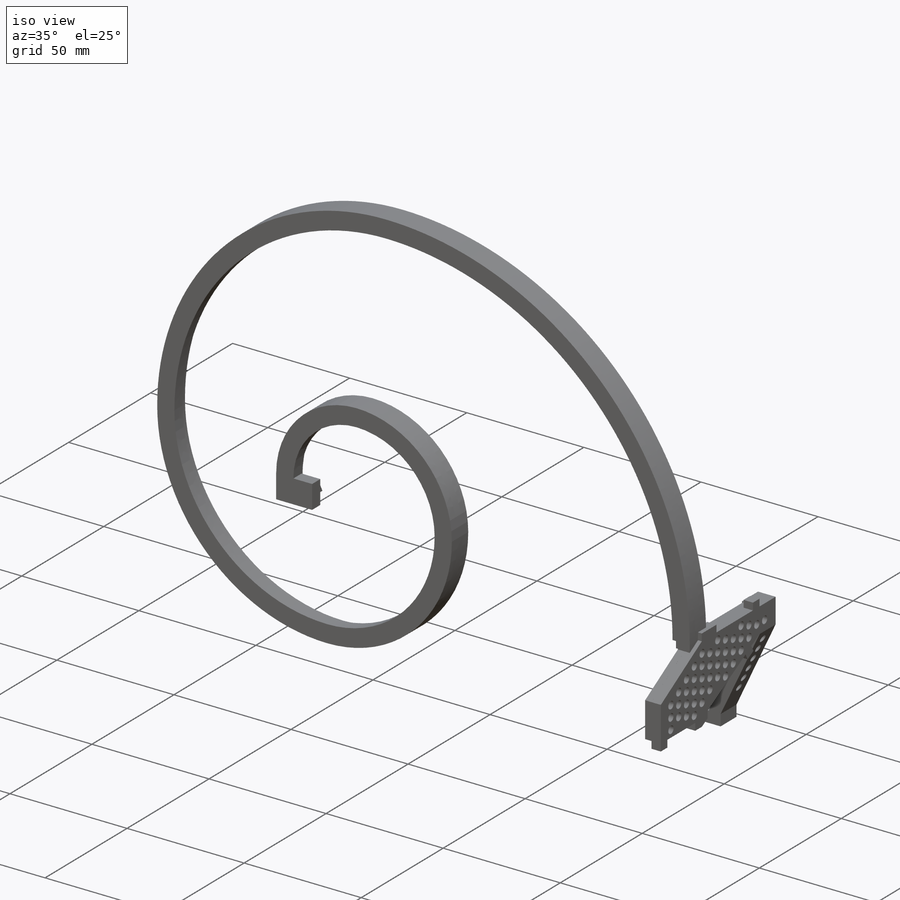
[diagram: iso view]
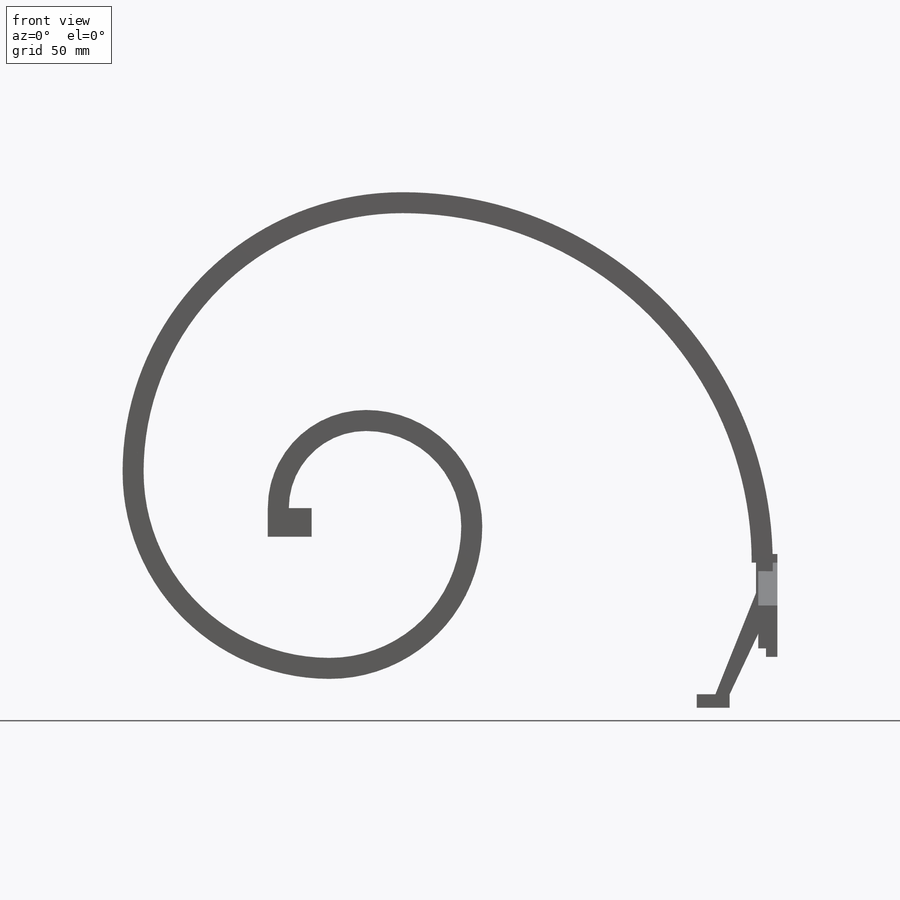
[diagram: front view]
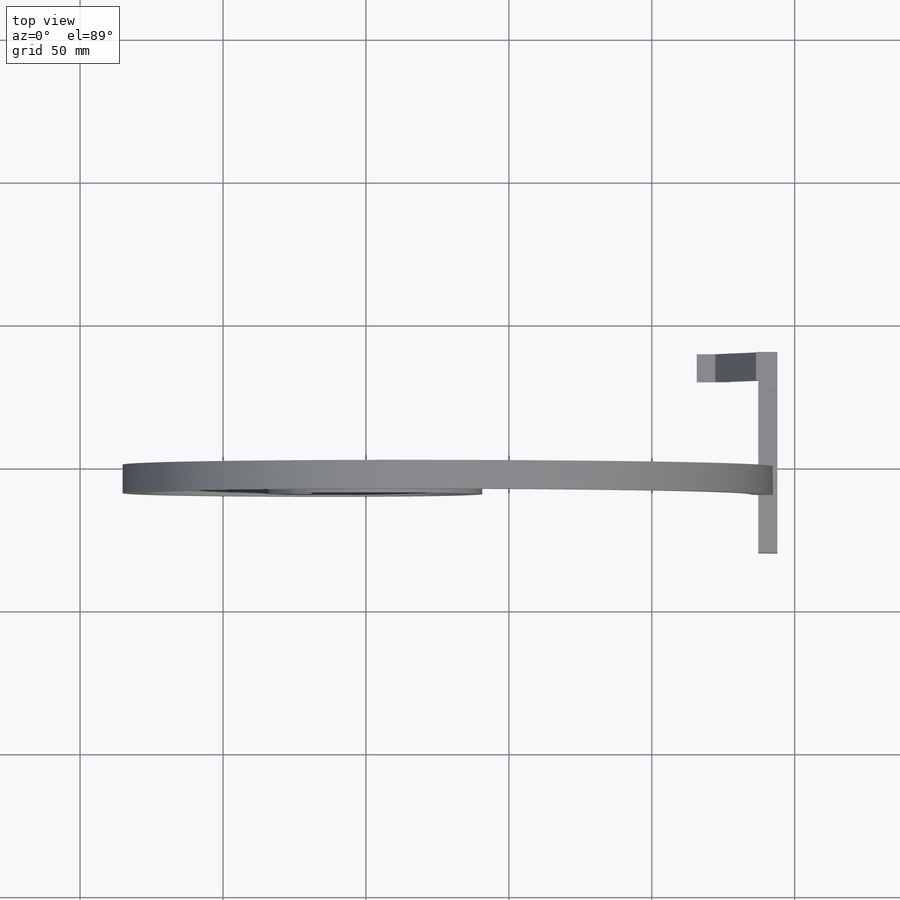
[diagram: top view]
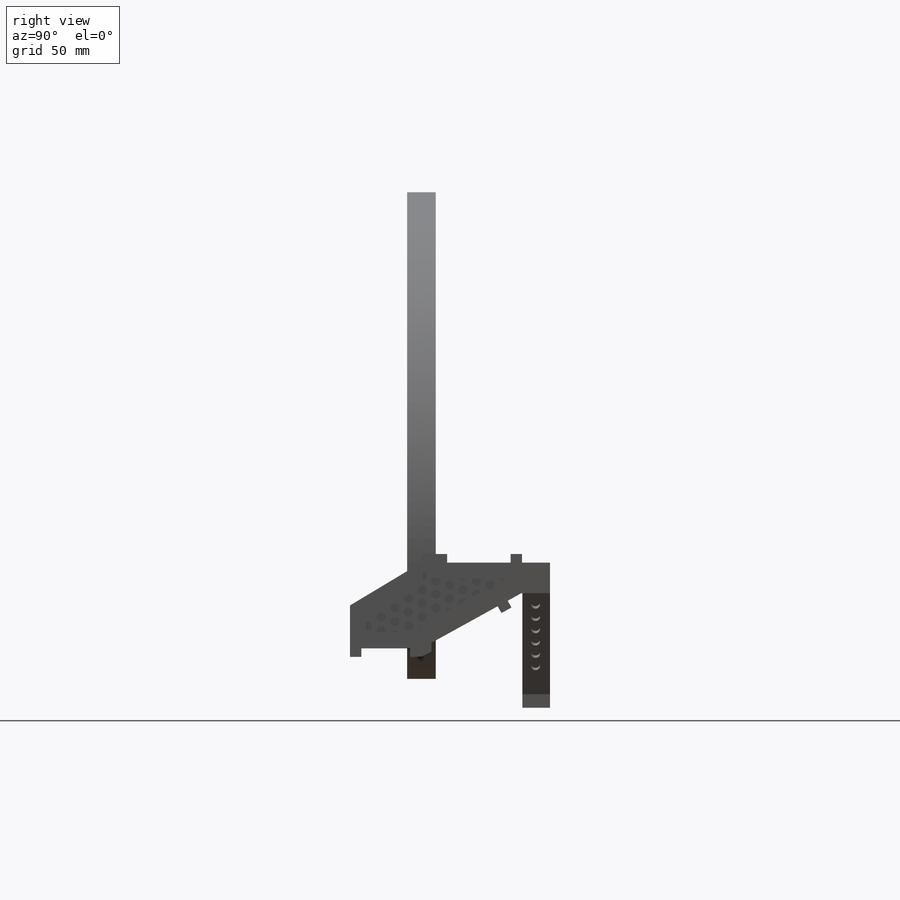
[diagram: right view]
SOLIDWORKS PART (.sldprt)
format: sldprt  version: not decoded by parser v0  size: 737,280 bytes
history: native  units: mm
features: sketch x19, extrude x11, cut_extrude x8, material x1 (+15 scaffold rows collapsed)
feature tree (54):
  scaffold x15  (default folders/planes/origin — collapsed)
  material  "Material <not specified>"
  sketch  "Sketch2"  dims[D1=~9.778892mm]
  extrude  "Extrude2"  Depth=5mm
  sketch  "Sketch3"  dims[D1=9.525mm]
  extrude  "Extrude3"  Depth=5mm
  sketch  "Sketch4"
  extrude  "Extrude4"  Depth=9.5mm
  sketch  "Sketch6"
  cut_extrude  "Cut-Extrude1"  Depth=8mm
  sketch  "Sketch7"
  extrude  "Extrude5"  Depth=8mm
  sketch  "Sketch8"
  extrude  "Extrude6"  Depth=30mm
  sketch  "Sketch9"
  extrude  "Extrude7"  Depth=20mm
  sketch  "Sketch11"
  extrude  "Extrude8"  Depth=30mm
  sketch  "Sketch10"
  cut_extrude  "Cut-Extrude2"  Depth=5mm
  sketch  "Sketch12"
  extrude  "Extrude9"  Depth=10mm
  sketch  "Sketch14"
  extrude  "Extrude10"  Depth=10mm
  sketch  "Sketch15"
  cut_extrude  "Cut-Extrude3"  Depth=15mm
  sketch  "Sketch16"  dims[D1=0.5mm]
  cut_extrude  "Cut-Extrude4"  Depth=5mm
  sketch  "Sketch17"
  cut_extrude  "Cut-Extrude5"  Depth=1mm
  sketch  "Sketch19"  dims[D1=0.2mm D2=0.2mm]
  cut_extrude  "Extrude11"  Depth=0.8mm
  sketch  "Sketch20"  dims[MLK=4.0mm D1=4.0mm D2=4.0mm D3=4.0mm D4=4.0mm D5=4.0mm D6=4.0mm]
  extrude  "Extrude12"  Depth=4mm
  sketch  "Sketch21"  dims[D1=6.585mm]
  extrude  "Extrude13"  Depth=9.7mm
  sketch  "Sketch22"
  cut_extrude  "Extrude14"  Depth=4mm
  sketch  "Sketch23"
  cut_extrude  "Extrude15"  Depth=2mm
decode coverage: 25 of 38 modeling features carry decoded parameters
note: ~ marks probable driven/reference dimensions
note: suppression state not decoded; provenance and decode notes live in map.json
